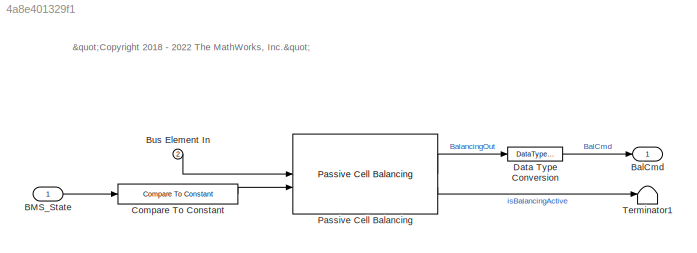
MODEL slx_4a8e401329f1
KIND model
BLOCK [Inport] BMS_State
  OutDataTypeStr = Enum: BMS_State_Enum
  PortDimensions = 1
  SampleTime = [0.1,0]
  SamplingMode = Sample based
  SignalType = real
BLOCK [Outport] BalCmd
  OutDataTypeStr = boolean
  PortDimensions = [1,NumModules*Ns_Module]
  SampleTime = [0.1,0]
  SamplingMode = Sample based
  SignalType = real
  VectorParamsAs1DForOutWhenUnconnected = off
BLOCK [Inport] Bus Element In
  Port = 2
BLOCK [Reference] Compare To Constant  REF=simulink/Logic and Bit
Operations/Compare
To Constant
  SourceBlock = simulink/Logic and Bit\nOperations/Compare\nTo Constant
  SourceType = Compare To Constant
BLOCK [DataTypeConversion] Data Type Conversion
  OutDataTypeStr = boolean
  RndMeth = Floor
  SaturateOnIntegerOverflow = off
BLOCK [Reference] Passive Cell Balancing  REF=BatteryBalancing/Passive Cell Balancing
  LibrarySourceBlock = batt_sl_lib/Cell Balancing/Passive Cell Balancing
  SourceBlock = BatteryBalancing/Passive Cell Balancing
  SourceType = Passive Cell Balancing
BLOCK [Terminator] Terminator1
ANNOTATION (root): "<copyright redacted>
LINE BMS_State:1 -> Compare To Constant:1
LINE Bus Element In:1 -> Passive Cell Balancing:1
LINE Compare To Constant:1 -> Passive Cell Balancing:2
LINE Data Type Conversion:1 -> BalCmd:1
LINE Passive Cell Balancing:1 -> Data Type Conversion:1
LINE Passive Cell Balancing:2 -> Terminator1:1
